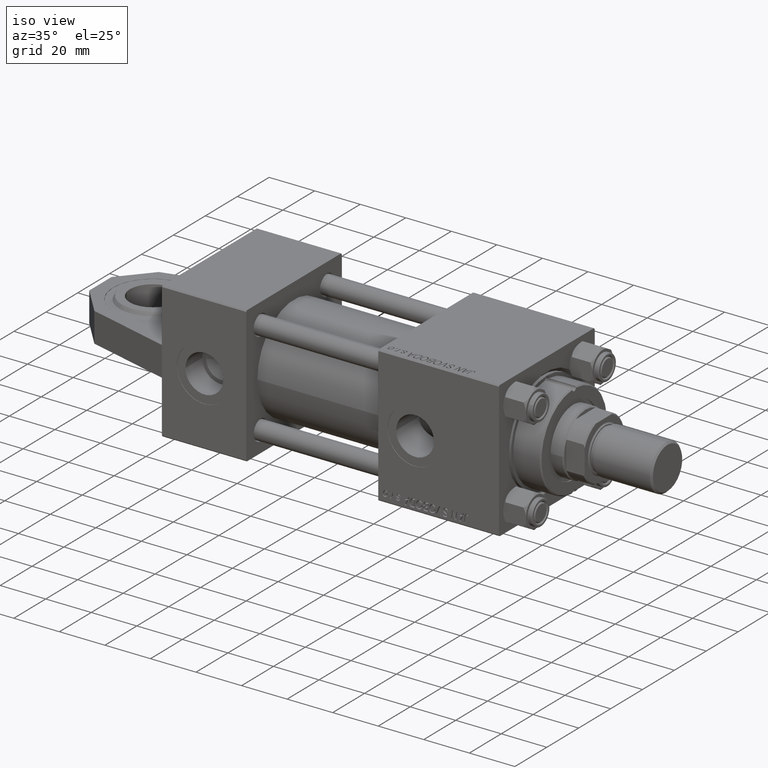
[diagram: clean part render]
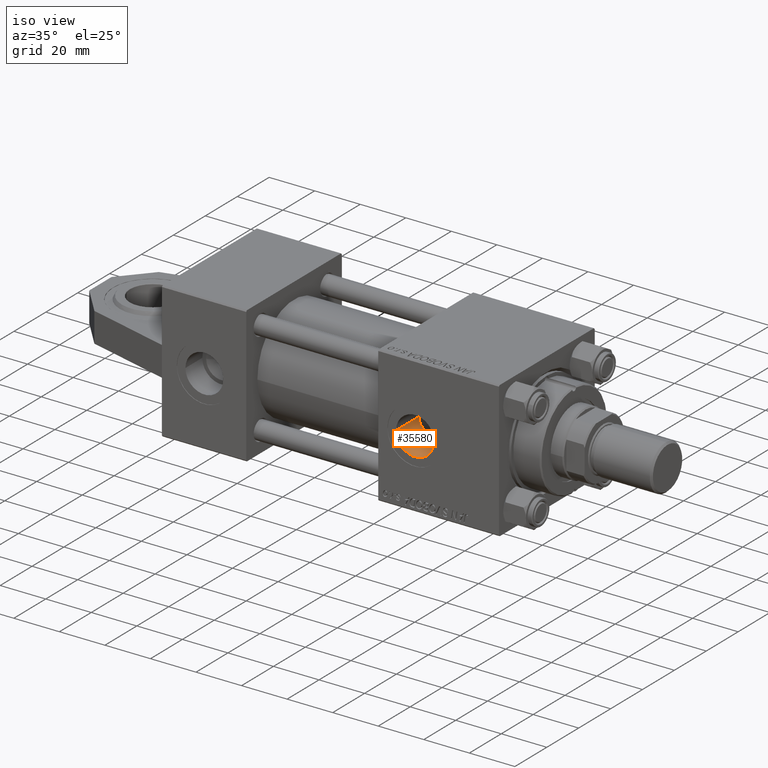
[diagram: same view with one face highlighted and labeled with its STEP entity id]
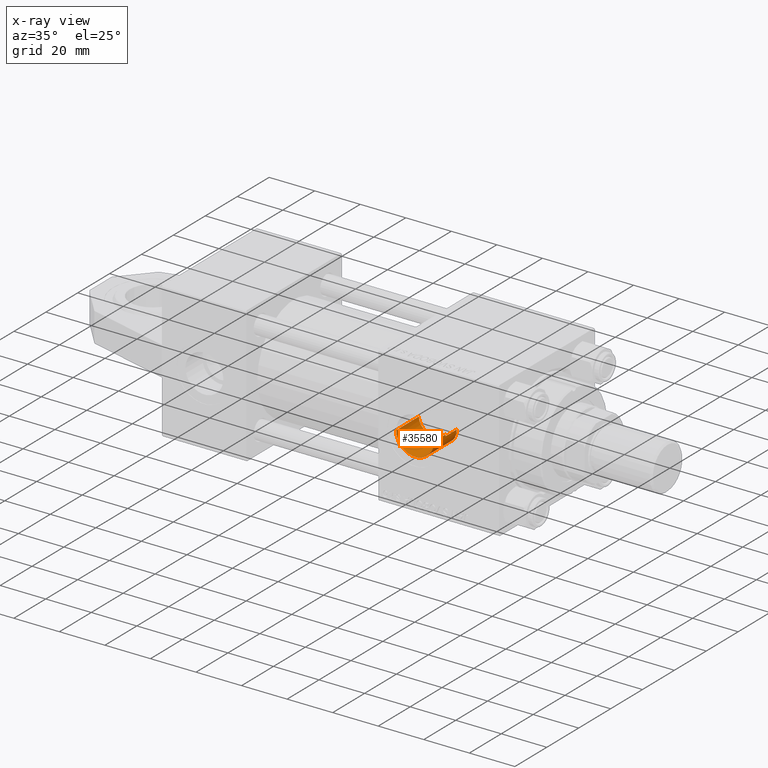
[diagram: x-ray of the same camera — body ghosted, the highlighted face saturated]
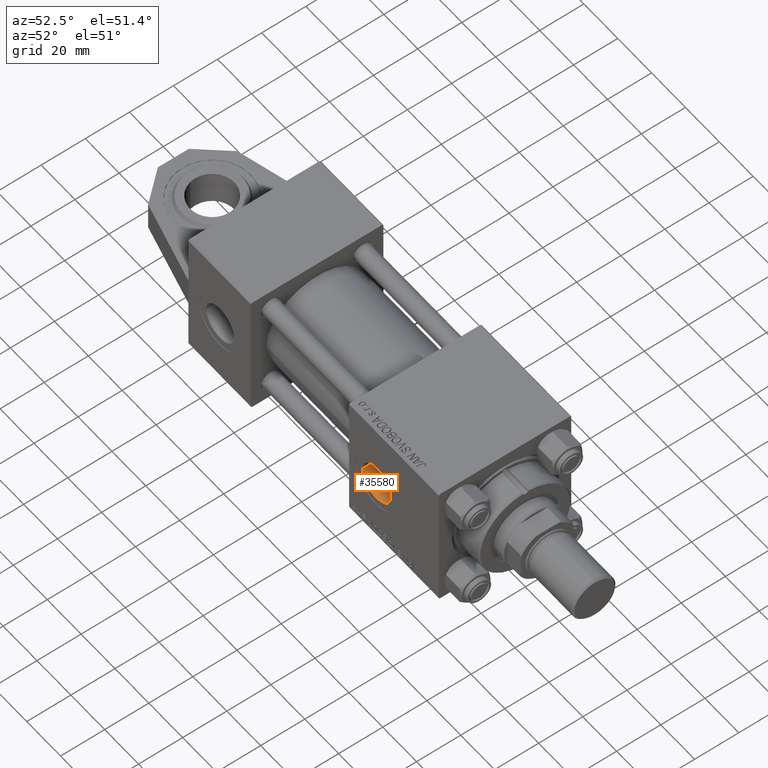
[diagram: same view with one face highlighted and labeled with its STEP entity id]
A machine part, iso view. The second image highlights one B-rep face of the part: STEP entity #35580.
The next image is the same camera in x-ray: the body ghosted, the highlighted face saturated — about 0% of this face is hidden behind the body in this view.
A second angle (auxiliary view) of the same face is appended — the face is thin or edge-on in the first view.
In plain terms, the highlighted cylindrical surface (edge-blend (fillet) strip) has radius 8.33 mm, axis along (0, 1, 0).
Its self-contained STEP definition (entity closure, byte-faithful):
#300 = EDGE_CURVE ( 'NONE', #40715, #10182, #5000, .T. ) ;
#495 = CARTESIAN_POINT ( 'NONE',  ( 119.2999999999999829, -0.7063285354565423946, 52.79999999999999716 ) ) ;
#1860 = CARTESIAN_POINT ( 'NONE',  ( 117.6814859054843367, -4.986894924185446776, 14.67899340481585746 ) ) ;
#2109 = CARTESIAN_POINT ( 'NONE',  ( 118.2557022334251258, -4.107191428843018244, 14.94947048340120332 ) ) ;
#2270 = EDGE_CURVE ( 'NONE', #34551, #44337, #17739, .T. ) ;
#2645 = CARTESIAN_POINT ( 'NONE',  ( 103.7356139241942827, -4.094008462183724717, 14.95330218343579709 ) ) ;
#4256 = DIRECTION ( 'NONE',  ( 0.000000000000000000, 0.000000000000000000, 1.000000000000000000 ) ) ;
#5000 = B_SPLINE_CURVE_WITH_KNOTS ( 'NONE', 3,
 ( #48852, #28821, #9319, #17274, #32415, #2109, #44742, #1860, #9057, #5973, #28570, #36525, #9574, #32923, #24727, #40624 ),
 .UNSPECIFIED., .F., .F.,
 ( 4, 2, 2, 2, 2, 2, 2, 4 ),
 ( 3.416651864263509077E-16, 0.002164281519508079021, 0.003246422279261940939, 0.004328563039015803290, 0.005410703798769665208, 0.006492844558523526259, 0.007574985318277389044, 0.008657126078031250963 ),
 .UNSPECIFIED. ) ;
#5170 = ORIENTED_EDGE ( 'NONE', *, *, #26421, .F. ) ;
#5973 = CARTESIAN_POINT ( 'NONE',  ( 116.9996026483513276, -5.789379398717359848, 14.38096412590969564 ) ) ;
#6126 = ORIENTED_EDGE ( 'NONE', *, *, #45744, .F. ) ;
#6210 = CARTESIAN_POINT ( 'NONE',  ( 102.6699999999996180, -2.713081726590588117E-14, 15.50000000000020428 ) ) ;
#7207 = CIRCLE ( 'NONE', #13783, 8.330000000000003624 ) ;
#7261 = CARTESIAN_POINT ( 'NONE',  ( 103.5555123538905207, -3.757474466741724584, 15.04203335714862710 ) ) ;
#7841 = CARTESIAN_POINT ( 'NONE',  ( 119.3300000000000125, -2.449316168263869032E-15, 52.79999999999999716 ) ) ;
#8200 = CYLINDRICAL_SURFACE ( 'NONE', #37336, 8.330000000000003624 ) ;
#8270 = CARTESIAN_POINT ( 'NONE',  ( 107.2451498032544919, -7.435724578008534813, 13.59999999999999076 ) ) ;
#8527 = LINE ( 'NONE', #30859, #32279 ) ;
#8851 = B_SPLINE_CURVE_WITH_KNOTS ( 'NONE', 3,
 ( #26522, #29864, #33961, #30116, #10104, #50138, #38071, #2645, #7261, #13965, #46034, #45277, #18319, #46289, #18058, #22172 ),
 .UNSPECIFIED., .F., .F.,
 ( 4, 2, 2, 2, 2, 2, 2, 4 ),
 ( 1.762687342693953287E-17, 0.002343612196725057811, 0.003515418295087579994, 0.004687224393450101743, 0.005859030491812623059, 0.007030836590175145243, 0.008202642688537667426, 0.009374448786900189609 ),
 .UNSPECIFIED. ) ;
#9057 = CARTESIAN_POINT ( 'NONE',  ( 117.4654438345355487, -5.264046141787121158, 14.58145607373045571 ) ) ;
#9319 = CARTESIAN_POINT ( 'NONE',  ( 119.0832175232422827, -2.135847849508031526, 15.36739229984345556 ) ) ;
#9574 = CARTESIAN_POINT ( 'NONE',  ( 115.9563515716283746, -6.704148802593676848, 13.97684504926374061 ) ) ;
#9577 = CARTESIAN_POINT ( 'NONE',  ( 111.0000000000000000, -3.469446951953613794E-15, 29.79999999999999716 ) ) ;
#10104 = CARTESIAN_POINT ( 'NONE',  ( 104.8421395764249837, -5.622509492967815881, 14.44759832893447360 ) ) ;
#10182 = VERTEX_POINT ( 'NONE', #39736 ) ;
#11703 = LINE ( 'NONE', #7841, #26448 ) ;
#12566 = EDGE_CURVE ( 'NONE', #47760, #34551, #11703, .T. ) ;
#13783 = AXIS2_PLACEMENT_3D ( 'NONE', #35577, #4256, #39680 ) ;
#13965 = CARTESIAN_POINT ( 'NONE',  ( 103.2388751121312396, -3.050237885181526387, 15.20123122413415828 ) ) ;
#14374 = CARTESIAN_POINT ( 'NONE',  ( 102.6700000000000017, -3.469446951953613794E-15, 29.79999999999999716 ) ) ;
#14682 = EDGE_CURVE ( 'NONE', #30998, #46310, #8851, .T. ) ;
#15303 = VECTOR ( 'NONE', #43634, 1000.000000000000000 ) ;
#17076 = ORIENTED_EDGE ( 'NONE', *, *, #50330, .F. ) ;
#17274 = CARTESIAN_POINT ( 'NONE',  ( 118.7215032992636736, -3.145651711574988241, 15.18130506059506679 ) ) ;
#17739 = B_SPLINE_CURVE_WITH_KNOTS ( 'NONE', 3,
 ( #20274, #35922, #36169, #25125 ),
 .UNSPECIFIED., .F., .F.,
 ( 4, 4 ),
 ( 0.0007063285354565328363, 0.001412657070913077816 ),
 .UNSPECIFIED. ) ;
#17959 = ORIENTED_EDGE ( 'NONE', *, *, #12566, .T. ) ;
#18016 = VERTEX_POINT ( 'NONE', #14374 ) ;
#18058 = CARTESIAN_POINT ( 'NONE',  ( 102.6700000000000301, -0.3932737753490447297, 15.50000000000000178 ) ) ;
#18319 = CARTESIAN_POINT ( 'NONE',  ( 102.8089720379881413, -1.564748737126397504, 15.42568822226018455 ) ) ;
#20274 = CARTESIAN_POINT ( 'NONE',  ( 119.3300000000000125, 2.755455270027974659E-15, 22.50000000000000355 ) ) ;
#20417 = DIRECTION ( 'NONE',  ( 0.000000000000000000, 0.000000000000000000, -1.000000000000000000 ) ) ;
#21622 = ORIENTED_EDGE ( 'NONE', *, *, #300, .T. ) ;
#21890 = ORIENTED_EDGE ( 'NONE', *, *, #14682, .T. ) ;
#22172 = CARTESIAN_POINT ( 'NONE',  ( 102.6699999999996180, -2.713081726590588117E-14, 15.50000000000020428 ) ) ;
#22738 = EDGE_LOOP ( 'NONE', ( #5170, #17959, #49257, #17076, #21622, #6126, #21890, #35689 ) ) ;
#23370 = DIRECTION ( 'NONE',  ( -1.000000000000000000, 0.000000000000000000, 0.000000000000000000 ) ) ;
#24727 = CARTESIAN_POINT ( 'NONE',  ( 115.0719793388101806, -7.275582495151264872, 13.68755679569670036 ) ) ;
#25125 = CARTESIAN_POINT ( 'NONE',  ( 119.2999999999999829, -0.7063285354565423946, 22.48891060056044111 ) ) ;
#26421 = EDGE_CURVE ( 'NONE', #47760, #18016, #43631, .T. ) ;
#26448 = VECTOR ( 'NONE', #20417, 1000.000000000000000 ) ;
#26522 = CARTESIAN_POINT ( 'NONE',  ( 107.2451498032544919, -7.435724578008534813, 13.59999999999999076 ) ) ;
#28570 = CARTESIAN_POINT ( 'NONE',  ( 116.7527035097904502, -6.034536163537686626, 14.27924648151569897 ) ) ;
#28821 = CARTESIAN_POINT ( 'NONE',  ( 119.2379181272459761, -1.435846766692881138, 15.45061967576075013 ) ) ;
#28838 = AXIS2_PLACEMENT_3D ( 'NONE', #9577, #48358, #40629 ) ;
#29864 = CARTESIAN_POINT ( 'NONE',  ( 106.5580543014319232, -7.088758972554062510, 13.78970152060303711 ) ) ;
#30116 = CARTESIAN_POINT ( 'NONE',  ( 105.1064272110299385, -5.898864207807588578, 14.33631558793831573 ) ) ;
#30859 = CARTESIAN_POINT ( 'NONE',  ( 102.6700000000000017, -3.469446951953613794E-15, 52.79999999999999716 ) ) ;
#30998 = VERTEX_POINT ( 'NONE', #8270 ) ;
#31046 = EDGE_CURVE ( 'NONE', #18016, #46310, #8527, .T. ) ;
#31051 = FACE_OUTER_BOUND ( 'NONE', #22738, .T. ) ;
#32279 = VECTOR ( 'NONE', #42934, 1000.000000000000000 ) ;
#32415 = CARTESIAN_POINT ( 'NONE',  ( 118.5780231920914360, -3.476751477085508135, 15.10853693558145494 ) ) ;
#32923 = CARTESIAN_POINT ( 'NONE',  ( 115.3773959923152148, -7.095733675622498460, 13.78217589145789645 ) ) ;
#33961 = CARTESIAN_POINT ( 'NONE',  ( 105.9411433775953384, -6.660665606237818892, 14.00684504084867754 ) ) ;
#34551 = VERTEX_POINT ( 'NONE', #40448 ) ;
#35577 = CARTESIAN_POINT ( 'NONE',  ( 111.0000000000000000, -3.469446951953613794E-15, 13.59999999999999076 ) ) ;
#35580 = ADVANCED_FACE ( 'NONE', ( #31051 ), #8200, .F. ) ;
#35667 = DIRECTION ( 'NONE',  ( 0.000000000000000000, 0.000000000000000000, -1.000000000000000000 ) ) ;
#35689 = ORIENTED_EDGE ( 'NONE', *, *, #31046, .F. ) ;
#35922 = CARTESIAN_POINT ( 'NONE',  ( 119.3300000000000125, -0.2354428451521790588, 22.50000000000000355 ) ) ;
#36169 = CARTESIAN_POINT ( 'NONE',  ( 119.3200361445783102, -0.4708856903043605602, 22.49630535626710781 ) ) ;
#36525 = CARTESIAN_POINT ( 'NONE',  ( 116.2310764146980091, -6.491922975836205367, 14.07719584522191347 ) ) ;
#37336 = AXIS2_PLACEMENT_3D ( 'NONE', #43884, #35667, #23370 ) ;
#38071 = CARTESIAN_POINT ( 'NONE',  ( 104.1369027071221751, -4.736043274220092414, 14.76252165391442794 ) ) ;
#39002 = LINE ( 'NONE', #495, #15303 ) ;
#39680 = DIRECTION ( 'NONE',  ( 1.000000000000000000, 0.000000000000000000, 0.000000000000000000 ) ) ;
#39736 = CARTESIAN_POINT ( 'NONE',  ( 114.7548501967455081, -7.435724578008534813, 13.59999999999999076 ) ) ;
#40448 = CARTESIAN_POINT ( 'NONE',  ( 119.3300000000000125, 2.755455270027974659E-15, 22.50000000000000355 ) ) ;
#40624 = CARTESIAN_POINT ( 'NONE',  ( 114.7548501967455081, -7.435724578008534813, 13.59999999999999076 ) ) ;
#40629 = DIRECTION ( 'NONE',  ( 1.000000000000000000, 0.000000000000000000, 0.000000000000000000 ) ) ;
#40715 = VERTEX_POINT ( 'NONE', #49880 ) ;
#42535 = CARTESIAN_POINT ( 'NONE',  ( 119.2999999999999829, -0.7063285354565423946, 22.48891060056044111 ) ) ;
#42863 = CARTESIAN_POINT ( 'NONE',  ( 119.3300000000000125, -2.449316168263869821E-15, 29.79999999999999716 ) ) ;
#42934 = DIRECTION ( 'NONE',  ( 0.000000000000000000, 0.000000000000000000, -1.000000000000000000 ) ) ;
#43631 = CIRCLE ( 'NONE', #28838, 8.330000000000003624 ) ;
#43634 = DIRECTION ( 'NONE',  ( -0.000000000000000000, -0.000000000000000000, 1.000000000000000000 ) ) ;
#43884 = CARTESIAN_POINT ( 'NONE',  ( 111.0000000000000000, -3.469446951953613794E-15, 52.79999999999999716 ) ) ;
#44337 = VERTEX_POINT ( 'NONE', #42535 ) ;
#44742 = CARTESIAN_POINT ( 'NONE',  ( 118.0762267006177098, -4.408899020335755203, 14.86282536370445229 ) ) ;
#45277 = CARTESIAN_POINT ( 'NONE',  ( 102.8906515532532637, -1.943315834972990430, 15.38227098439064022 ) ) ;
#45744 = EDGE_CURVE ( 'NONE', #30998, #10182, #7207, .T. ) ;
#46034 = CARTESIAN_POINT ( 'NONE',  ( 103.1052114789570311, -2.685204437881589801, 15.27024604249924522 ) ) ;
#46289 = CARTESIAN_POINT ( 'NONE',  ( 102.6985123997140477, -0.7916320528489119157, 15.48462509825850653 ) ) ;
#46310 = VERTEX_POINT ( 'NONE', #6210 ) ;
#47760 = VERTEX_POINT ( 'NONE', #42863 ) ;
#48358 = DIRECTION ( 'NONE',  ( -0.000000000000000000, -0.000000000000000000, -1.000000000000000000 ) ) ;
#48852 = CARTESIAN_POINT ( 'NONE',  ( 119.2999999999999829, -0.7063285354565423946, 15.48389808801387701 ) ) ;
#49257 = ORIENTED_EDGE ( 'NONE', *, *, #2270, .T. ) ;
#49880 = CARTESIAN_POINT ( 'NONE',  ( 119.2999999999999829, -0.7063285354565423946, 15.48389808801387701 ) ) ;
#50138 = CARTESIAN_POINT ( 'NONE',  ( 104.3580999100944950, -5.041529647880462761, 14.66044642165734757 ) ) ;
#50330 = EDGE_CURVE ( 'NONE', #40715, #44337, #39002, .T. ) ;